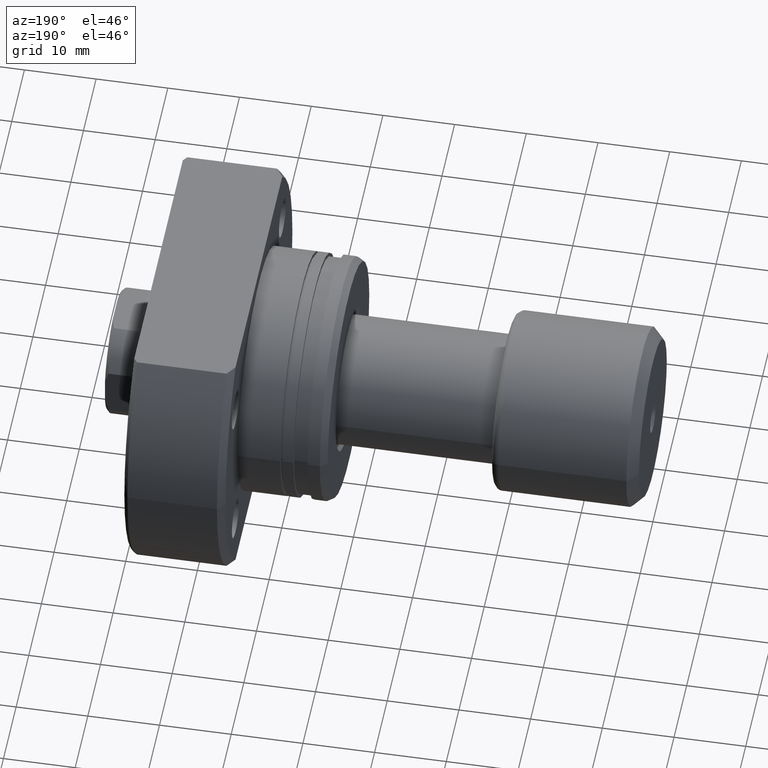
[diagram: clean part render]
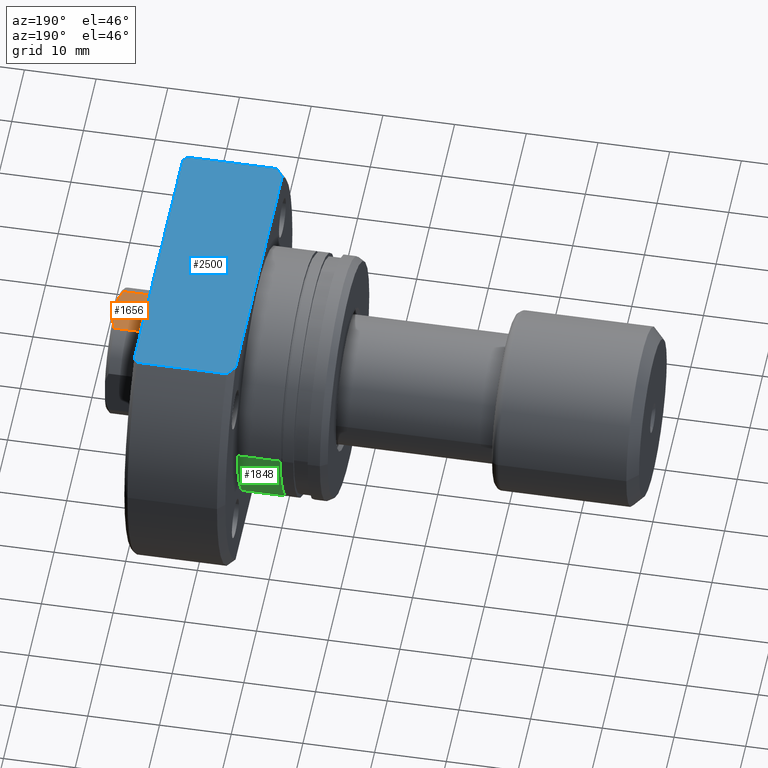
[diagram: same view with three faces highlighted in distinct colors, each labeled with its STEP entity id]
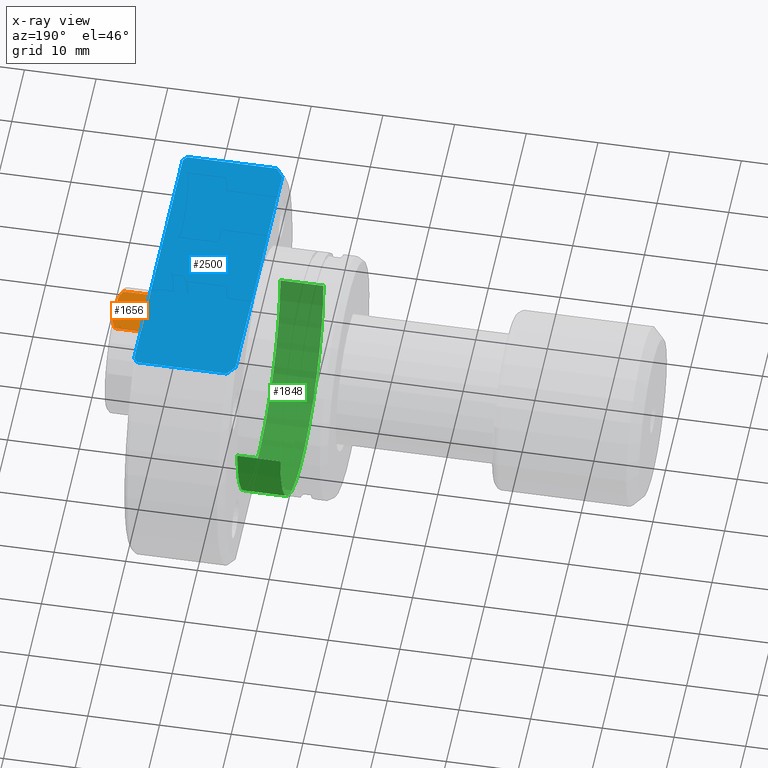
[diagram: x-ray of the same camera — body ghosted, the three highlighted faces saturated]
A machine part, auxiliary view with three faces highlighted in distinct colors.
The next image is the same camera in x-ray (body ghosted, the three faces saturated) — at least one of them is partly hidden behind the body in this view.
Their STEP definitions:

[orange] entity #1656 — the highlighted planar face has unit normal (0, 0, -1).
#15 = DIRECTION ( 'NONE',  ( 1.566181886088703027E-14, 1.000000000000000000, 2.447159197013598480E-16 ) ) ;
#37 = ORIENTED_EDGE ( 'NONE', *, *, #2004, .T. ) ;
#67 = CARTESIAN_POINT ( 'NONE',  ( 75.00000000000002842, 2.015564437074672366, 8.000000000000001776 ) ) ;
#175 = CARTESIAN_POINT ( 'NONE',  ( 74.99999999999997158, -2.015564437074678139, 8.000000000000001776 ) ) ;
#236 = VERTEX_POINT ( 'NONE', #2654 ) ;
#254 = VERTEX_POINT ( 'NONE', #3006 ) ;
#331 = CARTESIAN_POINT ( 'NONE',  ( 70.99999999999994316, -3.544361719690841461, 8.000000000000461853 ) ) ;
#362 = DIRECTION ( 'NONE',  ( 1.000000000000000000, -1.657264799492230625E-14, -0.000000000000000000 ) ) ;
#377 = CARTESIAN_POINT ( 'NONE',  ( 74.50000000000000000, 3.544361719690505286, 7.999999999999540812 ) ) ;
#458 = VECTOR ( 'NONE', #362, 1000.000000000000000 ) ;
#474 = EDGE_LOOP ( 'NONE', ( #1429, #37, #2967, #593, #1353, #2885 ) ) ;
#593 = ORIENTED_EDGE ( 'NONE', *, *, #2313, .T. ) ;
#605 = DIRECTION ( 'NONE',  ( 4.055590795964309469E-30, 2.447159197013598480E-16, -1.000000000000000000 ) ) ;
#637 = CARTESIAN_POINT ( 'NONE',  ( 74.99999999999994316, -3.544361719690702017, 8.000000000000000000 ) ) ;
#717 = EDGE_CURVE ( 'NONE', #2533, #2400, #891, .T. ) ;
#731 = VERTEX_POINT ( 'NONE', #377 ) ;
#783 = CARTESIAN_POINT ( 'NONE',  ( 70.99999999999994316, -3.544361719690635848, 8.000000000000000000 ) ) ;
#797 = CARTESIAN_POINT ( 'NONE',  ( 74.70177244820013129, 3.046244128603001755, 8.000000000000001776 ) ) ;
#839 = DIRECTION ( 'NONE',  ( 1.566181886088703027E-14, 1.000000000000000000, 2.447159197013598480E-16 ) ) ;
#854 = CARTESIAN_POINT ( 'NONE',  ( 70.99999999999994316, -3.544361719690635848, 8.000000000000000000 ) ) ;
#891 = LINE ( 'NONE', #637, #2056 ) ;
#920 = CARTESIAN_POINT ( 'NONE',  ( 74.50000000000000000, -3.544361719690899637, 8.000000000000461853 ) ) ;
#1097 = DIRECTION ( 'NONE',  ( 1.000000000000000000, -1.657264799492230625E-14, -0.000000000000000000 ) ) ;
#1169 = B_SPLINE_CURVE_WITH_KNOTS ( 'NONE', 3,
 ( #67, #2055, #797, #1823 ),
 .UNSPECIFIED., .F., .F.,
 ( 4, 4 ),
 ( 8.673617379884035472E-18, 0.001608484109754755717 ),
 .UNSPECIFIED. ) ;
#1197 = CARTESIAN_POINT ( 'NONE',  ( 74.70177244820047235, -3.046244128603206036, 7.999999999999542588 ) ) ;
#1279 = AXIS2_PLACEMENT_3D ( 'NONE', #854, #605, #1581 ) ;
#1353 = ORIENTED_EDGE ( 'NONE', *, *, #1639, .F. ) ;
#1429 = ORIENTED_EDGE ( 'NONE', *, *, #1610, .T. ) ;
#1453 = VERTEX_POINT ( 'NONE', #331 ) ;
#1544 = VECTOR ( 'NONE', #15, 1000.000000000000000 ) ;
#1581 = DIRECTION ( 'NONE',  ( 0.000000000000000000, 1.000000000000000000, 2.447159197013598480E-16 ) ) ;
#1610 = EDGE_CURVE ( 'NONE', #1453, #254, #1725, .T. ) ;
#1633 = LINE ( 'NONE', #3085, #2280 ) ;
#1639 = EDGE_CURVE ( 'NONE', #236, #731, #1633, .T. ) ;
#1656 = ADVANCED_FACE ( 'NONE', ( #3099 ), #2834, .F. ) ;
#1687 = B_SPLINE_CURVE_WITH_KNOTS ( 'NONE', 3,
 ( #920, #1197, #2895, #175 ),
 .UNSPECIFIED., .F., .F.,
 ( 4, 4 ),
 ( 3.888028203604823778E-16, 0.001608484109754731647 ),
 .UNSPECIFIED. ) ;
#1725 = LINE ( 'NONE', #1817, #458 ) ;
#1817 = CARTESIAN_POINT ( 'NONE',  ( 70.99999999999994316, -3.544361719690841461, 8.000000000000461853 ) ) ;
#1823 = CARTESIAN_POINT ( 'NONE',  ( 74.50000000000000000, 3.544361719690505286, 7.999999999999540812 ) ) ;
#2004 = EDGE_CURVE ( 'NONE', #254, #2533, #1687, .T. ) ;
#2055 = CARTESIAN_POINT ( 'NONE',  ( 74.87237951175809769, 2.537933758853216482, 8.000000000000001776 ) ) ;
#2056 = VECTOR ( 'NONE', #839, 1000.000000000000000 ) ;
#2155 = CARTESIAN_POINT ( 'NONE',  ( 75.00000000000002842, 2.015564437074672366, 8.000000000000001776 ) ) ;
#2240 = LINE ( 'NONE', #783, #1544 ) ;
#2280 = VECTOR ( 'NONE', #1097, 1000.000000000000000 ) ;
#2313 = EDGE_CURVE ( 'NONE', #2400, #731, #1169, .T. ) ;
#2400 = VERTEX_POINT ( 'NONE', #2155 ) ;
#2533 = VERTEX_POINT ( 'NONE', #2955 ) ;
#2561 = EDGE_CURVE ( 'NONE', #1453, #236, #2240, .T. ) ;
#2654 = CARTESIAN_POINT ( 'NONE',  ( 71.00000000000004263, 3.544361719690563461, 7.999999999999540812 ) ) ;
#2834 = PLANE ( 'NONE',  #1279 ) ;
#2885 = ORIENTED_EDGE ( 'NONE', *, *, #2561, .F. ) ;
#2895 = CARTESIAN_POINT ( 'NONE',  ( 74.87237951175814032, -2.537933758853082367, 8.000000000000000000 ) ) ;
#2955 = CARTESIAN_POINT ( 'NONE',  ( 74.99999999999997158, -2.015564437074678139, 8.000000000000001776 ) ) ;
#2967 = ORIENTED_EDGE ( 'NONE', *, *, #717, .T. ) ;
#3006 = CARTESIAN_POINT ( 'NONE',  ( 74.50000000000000000, -3.544361719690899637, 8.000000000000461853 ) ) ;
#3085 = CARTESIAN_POINT ( 'NONE',  ( 71.00000000000004263, 3.544361719690563461, 7.999999999999540812 ) ) ;
#3099 = FACE_OUTER_BOUND ( 'NONE', #474, .T. ) ;

[blue] entity #2500 — the highlighted planar face has unit normal (0, 0, 1).
#29 = EDGE_CURVE ( 'NONE', #2274, #1427, #2303, .T. ) ;
#157 = VECTOR ( 'NONE', #642, 1000.000000000000000 ) ;
#183 = VECTOR ( 'NONE', #2089, 1000.000000000000000 ) ;
#206 = EDGE_CURVE ( 'NONE', #263, #1627, #1377, .T. ) ;
#263 = VERTEX_POINT ( 'NONE', #532 ) ;
#324 = CARTESIAN_POINT ( 'NONE',  ( 13.16251021117672160, -19.41406682004138773, 19.00000000000001066 ) ) ;
#366 = ORIENTED_EDGE ( 'NONE', *, *, #493, .T. ) ;
#379 = CARTESIAN_POINT ( 'NONE',  ( 26.50000000000000355, 19.88089535207168623, 19.00000000000001066 ) ) ;
#391 = CARTESIAN_POINT ( 'NONE',  ( 12.50000000000000355, -18.47295320191106072, 19.00000000000001066 ) ) ;
#408 = EDGE_CURVE ( 'NONE', #1931, #1427, #515, .T. ) ;
#423 = VERTEX_POINT ( 'NONE', #1052 ) ;
#428 = LINE ( 'NONE', #379, #157 ) ;
#493 = EDGE_CURVE ( 'NONE', #2274, #263, #2413, .T. ) ;
#515 = B_SPLINE_CURVE_WITH_KNOTS ( 'NONE', 3,
 ( #1820, #1535, #843, #2598 ),
 .UNSPECIFIED., .F., .F.,
 ( 4, 4 ),
 ( 0.07446973138748344545, 0.07533421896860403866 ),
 .UNSPECIFIED. ) ;
#532 = CARTESIAN_POINT ( 'NONE',  ( 12.50000000000000355, 18.47295320191106072, 19.00000000000001066 ) ) ;
#611 = CARTESIAN_POINT ( 'NONE',  ( 13.49999999999998757, 19.88089535207129188, 19.00000000000000355 ) ) ;
#629 = CARTESIAN_POINT ( 'NONE',  ( 13.16276636410033873, 19.41442114037127453, 19.00000000000001066 ) ) ;
#642 = DIRECTION ( 'NONE',  ( -0.000000000000000000, 1.000000000000000000, 0.000000000000000000 ) ) ;
#701 = LINE ( 'NONE', #1166, #2949 ) ;
#729 = AXIS2_PLACEMENT_3D ( 'NONE', #1458, #2267, #1471 ) ;
#800 = EDGE_CURVE ( 'NONE', #1521, #423, #701, .T. ) ;
#827 = CARTESIAN_POINT ( 'NONE',  ( 12.82923531929442262, 18.94525104546319128, 19.00000000000001066 ) ) ;
#836 = ORIENTED_EDGE ( 'NONE', *, *, #800, .T. ) ;
#843 = CARTESIAN_POINT ( 'NONE',  ( 26.16766778152496187, 19.64897098899368899, 19.00000000000001066 ) ) ;
#907 = CARTESIAN_POINT ( 'NONE',  ( 13.49999999999998757, -19.88089535207056002, 19.00000000000001421 ) ) ;
#922 = DIRECTION ( 'NONE',  ( 1.000000000000000000, -2.886466111666351885E-14, -0.000000000000000000 ) ) ;
#1052 = CARTESIAN_POINT ( 'NONE',  ( 26.00000000000007461, -19.88089535207091885, 19.00000000000001421 ) ) ;
#1110 = CARTESIAN_POINT ( 'NONE',  ( 12.82897297353833999, -18.94487470268462914, 19.00000000000001066 ) ) ;
#1126 = ORIENTED_EDGE ( 'NONE', *, *, #206, .T. ) ;
#1166 = CARTESIAN_POINT ( 'NONE',  ( -1.360023205165816762E-12, -19.88089535207016922, 19.00000000000001421 ) ) ;
#1299 = CARTESIAN_POINT ( 'NONE',  ( 26.00000000000007461, 19.88089535207092950, 19.00000000000000355 ) ) ;
#1326 = CARTESIAN_POINT ( 'NONE',  ( 12.50000000000000355, 18.47295320191106072, 19.00000000000001066 ) ) ;
#1377 = LINE ( 'NONE', #3153, #2422 ) ;
#1427 = VERTEX_POINT ( 'NONE', #1299 ) ;
#1458 = CARTESIAN_POINT ( 'NONE',  ( -2.151057110211240797E-13, 19.88089535207168623, 19.00000000000001066 ) ) ;
#1471 = DIRECTION ( 'NONE',  ( 1.000000000000000000, 0.000000000000000000, -0.000000000000000000 ) ) ;
#1509 = VERTEX_POINT ( 'NONE', #3134 ) ;
#1521 = VERTEX_POINT ( 'NONE', #907 ) ;
#1535 = CARTESIAN_POINT ( 'NONE',  ( 26.33435831467464538, 19.41646217622441029, 19.00000000000001066 ) ) ;
#1627 = VERTEX_POINT ( 'NONE', #391 ) ;
#1739 = ORIENTED_EDGE ( 'NONE', *, *, #2807, .T. ) ;
#1800 = B_SPLINE_CURVE_WITH_KNOTS ( 'NONE', 3,
 ( #1829, #1110, #324, #3081 ),
 .UNSPECIFIED., .F., .F.,
 ( 4, 4 ),
 ( 0.07360185391654980314, 0.07534192973589427800 ),
 .UNSPECIFIED. ) ;
#1820 = CARTESIAN_POINT ( 'NONE',  ( 26.50000000000000355, 19.18332609325086935, 19.00000000000000711 ) ) ;
#1829 = CARTESIAN_POINT ( 'NONE',  ( 12.50000000000000355, -18.47295320191106072, 19.00000000000001066 ) ) ;
#1888 = CARTESIAN_POINT ( 'NONE',  ( 26.00000000000007461, -19.88089535207091885, 19.00000000000001421 ) ) ;
#1931 = VERTEX_POINT ( 'NONE', #3063 ) ;
#1934 = EDGE_CURVE ( 'NONE', #1627, #1521, #1800, .T. ) ;
#2000 = ORIENTED_EDGE ( 'NONE', *, *, #408, .T. ) ;
#2002 = ORIENTED_EDGE ( 'NONE', *, *, #1934, .T. ) ;
#2028 = B_SPLINE_CURVE_WITH_KNOTS ( 'NONE', 3,
 ( #1888, #2653, #2454, #2694 ),
 .UNSPECIFIED., .F., .F.,
 ( 4, 4 ),
 ( 0.03127512062948595295, 0.03213456893170307110 ),
 .UNSPECIFIED. ) ;
#2089 = DIRECTION ( 'NONE',  ( 1.000000000000000000, -2.886466111666351885E-14, -0.000000000000000000 ) ) ;
#2107 = CARTESIAN_POINT ( 'NONE',  ( -2.151057110211240797E-13, 19.88089535207167913, 19.00000000000000355 ) ) ;
#2143 = DIRECTION ( 'NONE',  ( 9.242617352055502386E-18, -1.000000000000000000, 0.000000000000000000 ) ) ;
#2267 = DIRECTION ( 'NONE',  ( 0.000000000000000000, 0.000000000000000000, 1.000000000000000000 ) ) ;
#2274 = VERTEX_POINT ( 'NONE', #3106 ) ;
#2303 = LINE ( 'NONE', #2107, #183 ) ;
#2407 = EDGE_CURVE ( 'NONE', #423, #1509, #2028, .T. ) ;
#2413 = B_SPLINE_CURVE_WITH_KNOTS ( 'NONE', 3,
 ( #611, #629, #827, #1326 ),
 .UNSPECIFIED., .F., .F.,
 ( 4, 4 ),
 ( 0.03128279945209438972, 0.03301205973984312758 ),
 .UNSPECIFIED. ) ;
#2422 = VECTOR ( 'NONE', #2143, 1000.000000000000000 ) ;
#2454 = CARTESIAN_POINT ( 'NONE',  ( 26.33429591812845061, -19.41654999763447620, 19.00000000000001066 ) ) ;
#2500 = ADVANCED_FACE ( 'NONE', ( #3194 ), #2727, .T. ) ;
#2517 = ORIENTED_EDGE ( 'NONE', *, *, #29, .F. ) ;
#2598 = CARTESIAN_POINT ( 'NONE',  ( 26.00000000000007461, 19.88089535207092950, 19.00000000000000355 ) ) ;
#2653 = CARTESIAN_POINT ( 'NONE',  ( 26.16760613831981885, -19.64905625618670726, 19.00000000000001066 ) ) ;
#2694 = CARTESIAN_POINT ( 'NONE',  ( 26.50000000000000355, -19.18332609325086224, 19.00000000000000711 ) ) ;
#2727 = PLANE ( 'NONE',  #729 ) ;
#2768 = EDGE_LOOP ( 'NONE', ( #366, #1126, #2002, #836, #2781, #1739, #2000, #2517 ) ) ;
#2781 = ORIENTED_EDGE ( 'NONE', *, *, #2407, .T. ) ;
#2807 = EDGE_CURVE ( 'NONE', #1509, #1931, #428, .T. ) ;
#2949 = VECTOR ( 'NONE', #922, 1000.000000000000000 ) ;
#3063 = CARTESIAN_POINT ( 'NONE',  ( 26.50000000000000355, 19.18332609325086935, 19.00000000000000711 ) ) ;
#3081 = CARTESIAN_POINT ( 'NONE',  ( 13.49999999999998757, -19.88089535207056002, 19.00000000000001421 ) ) ;
#3106 = CARTESIAN_POINT ( 'NONE',  ( 13.49999999999998757, 19.88089535207129188, 19.00000000000000355 ) ) ;
#3134 = CARTESIAN_POINT ( 'NONE',  ( 26.50000000000000355, -19.18332609325086224, 19.00000000000000711 ) ) ;
#3153 = CARTESIAN_POINT ( 'NONE',  ( 12.50000000000000355, -16.99999999999999645, 19.00000000000001066 ) ) ;
#3194 = FACE_OUTER_BOUND ( 'NONE', #2768, .T. ) ;

[green] entity #1848 — the highlighted cylindrical surface (partial cylindrical patch) has radius 17 mm, axis along (1, 0, 0).
#18 = CARTESIAN_POINT ( 'NONE',  ( 26.50000000000000711, -16.99999999999999645, 2.081899558550499885E-15 ) ) ;
#105 = DIRECTION ( 'NONE',  ( 1.000000000000000000, 9.242617352055502386E-18, -0.000000000000000000 ) ) ;
#411 = AXIS2_PLACEMENT_3D ( 'NONE', #2534, #2019, #3032 ) ;
#522 = AXIS2_PLACEMENT_3D ( 'NONE', #614, #105, #845 ) ;
#572 = CARTESIAN_POINT ( 'NONE',  ( 12.50000000000000178, 16.99999999999999645, 0.000000000000000000 ) ) ;
#614 = CARTESIAN_POINT ( 'NONE',  ( 6.499999999999783284, 6.007701278835876331E-17, 0.000000000000000000 ) ) ;
#735 = CIRCLE ( 'NONE', #2552, 16.99999999999999645 ) ;
#845 = DIRECTION ( 'NONE',  ( 0.000000000000000000, 1.000000000000000000, 0.000000000000000000 ) ) ;
#928 = DIRECTION ( 'NONE',  ( 1.000000000000000000, 9.242617352055502386E-18, -0.000000000000000000 ) ) ;
#959 = CARTESIAN_POINT ( 'NONE',  ( 12.50000000000000178, -16.99999999999999645, 2.081899558550499885E-15 ) ) ;
#985 = LINE ( 'NONE', #18, #2022 ) ;
#1047 = VERTEX_POINT ( 'NONE', #2516 ) ;
#1354 = CARTESIAN_POINT ( 'NONE',  ( 26.50000000000000711, 16.99999999999999645, 0.000000000000000000 ) ) ;
#1370 = EDGE_CURVE ( 'NONE', #1047, #1583, #985, .T. ) ;
#1568 = ORIENTED_EDGE ( 'NONE', *, *, #2232, .T. ) ;
#1576 = DIRECTION ( 'NONE',  ( 0.000000000000000000, 1.000000000000000000, 0.000000000000000000 ) ) ;
#1583 = VERTEX_POINT ( 'NONE', #959 ) ;
#1776 = ORIENTED_EDGE ( 'NONE', *, *, #3129, .F. ) ;
#1848 = ADVANCED_FACE ( 'NONE', ( #1989 ), #2985, .T. ) ;
#1857 = CIRCLE ( 'NONE', #522, 16.99999999999999645 ) ;
#1983 = DIRECTION ( 'NONE',  ( 1.000000000000000000, 9.242617352055502386E-18, -0.000000000000000000 ) ) ;
#1989 = FACE_OUTER_BOUND ( 'NONE', #2997, .T. ) ;
#2019 = DIRECTION ( 'NONE',  ( 1.000000000000000000, 9.242617352055502386E-18, -0.000000000000000000 ) ) ;
#2022 = VECTOR ( 'NONE', #1983, 1000.000000000000000 ) ;
#2049 = CARTESIAN_POINT ( 'NONE',  ( 6.499999999999783284, 16.99999999999999645, 0.000000000000000000 ) ) ;
#2079 = ORIENTED_EDGE ( 'NONE', *, *, #2934, .T. ) ;
#2232 = EDGE_CURVE ( 'NONE', #1047, #3080, #1857, .T. ) ;
#2278 = ORIENTED_EDGE ( 'NONE', *, *, #1370, .F. ) ;
#2287 = VECTOR ( 'NONE', #928, 1000.000000000000000 ) ;
#2516 = CARTESIAN_POINT ( 'NONE',  ( 6.499999999999783284, -16.99999999999999645, 2.081899558550499885E-15 ) ) ;
#2534 = CARTESIAN_POINT ( 'NONE',  ( 26.50000000000000711, 2.449293598294708880E-16, 0.000000000000000000 ) ) ;
#2552 = AXIS2_PLACEMENT_3D ( 'NONE', #3097, #2821, #1576 ) ;
#2613 = LINE ( 'NONE', #1354, #2287 ) ;
#2821 = DIRECTION ( 'NONE',  ( 1.000000000000000000, 9.242617352055502386E-18, -0.000000000000000000 ) ) ;
#2934 = EDGE_CURVE ( 'NONE', #3080, #3078, #2613, .T. ) ;
#2985 = CYLINDRICAL_SURFACE ( 'NONE', #411, 16.99999999999999645 ) ;
#2997 = EDGE_LOOP ( 'NONE', ( #2278, #1568, #2079, #1776 ) ) ;
#3032 = DIRECTION ( 'NONE',  ( 0.000000000000000000, 1.000000000000000000, 0.000000000000000000 ) ) ;
#3078 = VERTEX_POINT ( 'NONE', #572 ) ;
#3080 = VERTEX_POINT ( 'NONE', #2049 ) ;
#3097 = CARTESIAN_POINT ( 'NONE',  ( 12.50000000000000178, 1.155327169006937960E-16, 0.000000000000000000 ) ) ;
#3129 = EDGE_CURVE ( 'NONE', #1583, #3078, #735, .T. ) ;